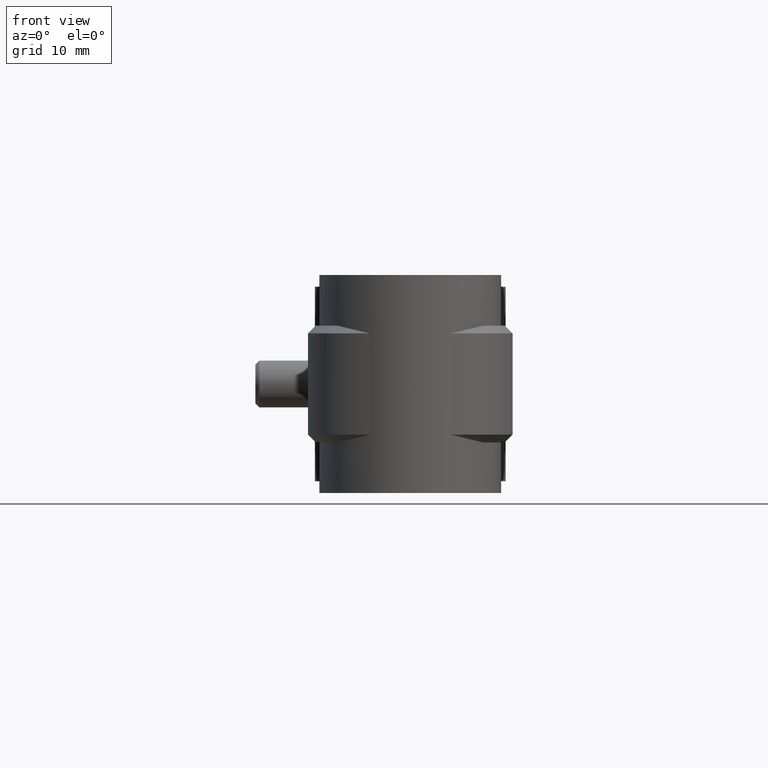
[diagram: clean part render]
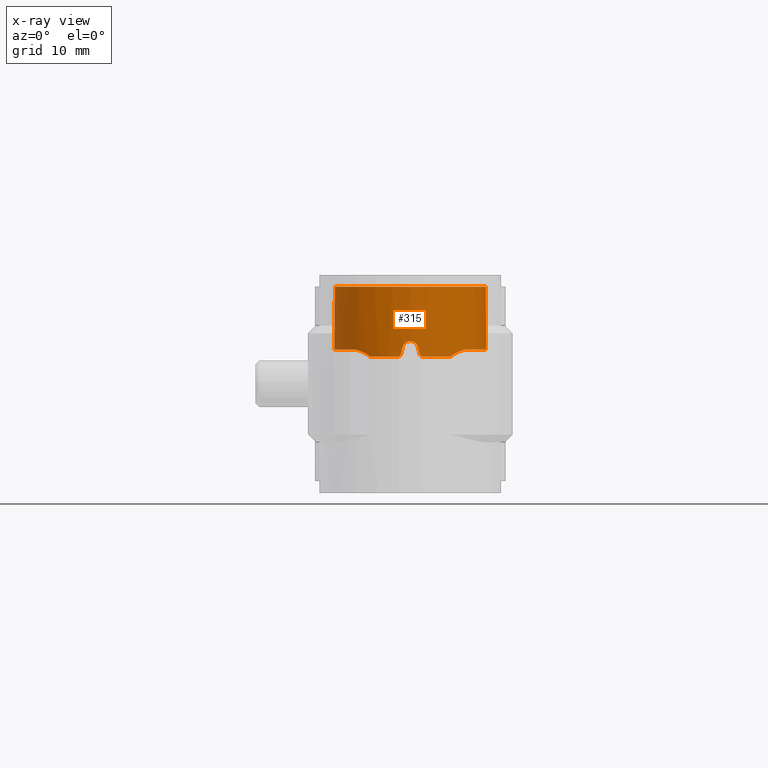
[diagram: x-ray — body ghosted, one internal face saturated and labeled with its STEP entity id]
A machine part, front view, then the same camera in x-ray: the body is ghosted and one INTERNAL B-rep face — a face not visible from any outside direction — is saturated and labeled: STEP entity #315.
In plain terms, the highlighted cylindrical surface (partial cylindrical patch) has radius 9.74 mm, axis along (0, 0, 1).
Its self-contained STEP definition (entity closure, byte-faithful):
#315 = ADVANCED_FACE( '', ( #526 ), #527, .T. );
#526 = FACE_OUTER_BOUND( '', #976, .T. );
#527 = CYLINDRICAL_SURFACE( '', #977, 9.74000000000000 );
#976 = EDGE_LOOP( '', ( #2002, #2003, #2004, #2005, #2006, #2007, #2008, #2009, #2010, #2011, #2012, #2013, #2014, #2015, #2016, #2017 ) );
#977 = AXIS2_PLACEMENT_3D( '', #2018, #2019, #2020 );
#2002 = ORIENTED_EDGE( '', *, *, #4694, .F. );
#2003 = ORIENTED_EDGE( '', *, *, #4695, .T. );
#2004 = ORIENTED_EDGE( '', *, *, #4696, .T. );
#2005 = ORIENTED_EDGE( '', *, *, #4697, .F. );
#2006 = ORIENTED_EDGE( '', *, *, #4698, .F. );
#2007 = ORIENTED_EDGE( '', *, *, #4699, .T. );
#2008 = ORIENTED_EDGE( '', *, *, #4700, .T. );
#2009 = ORIENTED_EDGE( '', *, *, #4701, .T. );
#2010 = ORIENTED_EDGE( '', *, *, #4702, .F. );
#2011 = ORIENTED_EDGE( '', *, *, #4703, .F. );
#2012 = ORIENTED_EDGE( '', *, *, #4704, .F. );
#2013 = ORIENTED_EDGE( '', *, *, #4705, .F. );
#2014 = ORIENTED_EDGE( '', *, *, #4706, .F. );
#2015 = ORIENTED_EDGE( '', *, *, #4707, .F. );
#2016 = ORIENTED_EDGE( '', *, *, #4708, .F. );
#2017 = ORIENTED_EDGE( '', *, *, #4709, .F. );
#2018 = CARTESIAN_POINT( '', ( 0.000000000000000, 0.000000000000000, 0.000000000000000 ) );
#2019 = DIRECTION( '', ( 0.000000000000000, 0.000000000000000, 1.00000000000000 ) );
#2020 = DIRECTION( '', ( 1.00000000000000, -6.12303176911189E-017, 0.000000000000000 ) );
#4694 = EDGE_CURVE( '', #5277, #5278, #5279, .T. );
#4695 = EDGE_CURVE( '', #5277, #5280, #5281, .T. );
#4696 = EDGE_CURVE( '', #5280, #5282, #5283, .T. );
#4697 = EDGE_CURVE( '', #5284, #5282, #5285, .T. );
#4698 = EDGE_CURVE( '', #5286, #5284, #5287, .F. );
#4699 = EDGE_CURVE( '', #5286, #5288, #5289, .T. );
#4700 = EDGE_CURVE( '', #5288, #5290, #5291, .T. );
#4701 = EDGE_CURVE( '', #5290, #5292, #5293, .T. );
#4702 = EDGE_CURVE( '', #5294, #5292, #5295, .T. );
#4703 = EDGE_CURVE( '', #5296, #5294, #5297, .T. );
#4704 = EDGE_CURVE( '', #5298, #5296, #5299, .T. );
#4705 = EDGE_CURVE( '', #5300, #5298, #5301, .T. );
#4706 = EDGE_CURVE( '', #5302, #5300, #5303, .T. );
#4707 = EDGE_CURVE( '', #5304, #5302, #5305, .T. );
#4708 = EDGE_CURVE( '', #5306, #5304, #5307, .T. );
#4709 = EDGE_CURVE( '', #5278, #5306, #5308, .T. );
#5277 = VERTEX_POINT( '', #6251 );
#5278 = VERTEX_POINT( '', #6252 );
#5279 = B_SPLINE_CURVE_WITH_KNOTS( '', 3, ( #6253, #6254, #6255, #6256 ), .UNSPECIFIED., .F., .F., ( 4, 4 ), ( 0.00511247518674574, 0.00528905155583519 ), .UNSPECIFIED. );
#5280 = VERTEX_POINT( '', #6257 );
#5281 = B_SPLINE_CURVE_WITH_KNOTS( '', 3, ( #6258, #6259, #6260, #6261, #6262, #6263, #6264, #6265 ), .UNSPECIFIED., .F., .F., ( 4, 2, 2, 4 ), ( 0.00165729756427079, 0.00290105319597624, 0.00352293101182897, 0.00414480882768169 ), .UNSPECIFIED. );
#5282 = VERTEX_POINT( '', #6266 );
#5283 = B_SPLINE_CURVE_WITH_KNOTS( '', 3, ( #6267, #6268, #6269, #6270, #6271, #6272, #6273, #6274, #6275, #6276, #6277, #6278, #6279, #6280, #6281, #6282, #6283, #6284, #6285, #6286, #6287, #6288, #6289, #6290, #6291, #6292 ), .UNSPECIFIED., .F., .F., ( 4, 2, 2, 2, 2, 2, 2, 2, 2, 2, 2, 2, 4 ), ( 0.000128665650344777, 0.00114666360792158, 0.00216466156549839, 0.00420065748065200, 0.00623665339580561, 0.00725465135338242, 0.00827264931095922, 0.00929064726853603, 0.0103086452261128, 0.0123446411412664, 0.0133626390988432, 0.0143806370564201, 0.0164166329715737 ), .UNSPECIFIED. );
#5284 = VERTEX_POINT( '', #6293 );
#5285 = LINE( '', #6294, #6295 );
#5286 = VERTEX_POINT( '', #6296 );
#5287 = CIRCLE( '', #6297, 9.74000000000000 );
#5288 = VERTEX_POINT( '', #6298 );
#5289 = LINE( '', #6299, #6300 );
#5290 = VERTEX_POINT( '', #6301 );
#5291 = B_SPLINE_CURVE_WITH_KNOTS( '', 3, ( #6302, #6303, #6304, #6305, #6306, #6307, #6308, #6309, #6310, #6311, #6312, #6313, #6314, #6315, #6316, #6317, #6318, #6319, #6320, #6321, #6322, #6323, #6324, #6325, #6326, #6327, #6328, #6329 ), .UNSPECIFIED., .F., .F., ( 4, 2, 2, 2, 2, 2, 2, 2, 2, 2, 2, 2, 2, 4 ), ( 0.000000000000000, 0.00203570962645634, 0.00305356443968451, 0.00407141925291268, 0.00610712887936901, 0.00712498369259718, 0.00814283850582534, 0.00916069331905351, 0.0101785481322817, 0.0122142577587380, 0.0132321125719662, 0.0142499673851943, 0.0152678221984225, 0.0162856770116507 ), .UNSPECIFIED. );
#5292 = VERTEX_POINT( '', #6330 );
#5293 = B_SPLINE_CURVE_WITH_KNOTS( '', 3, ( #6331, #6332, #6333, #6334, #6335, #6336, #6337, #6338 ), .UNSPECIFIED., .F., .F., ( 4, 2, 2, 4 ), ( 5.63355521490431E-005, 0.000684171958215715, 0.00131200836428239, 0.00256768117641573 ), .UNSPECIFIED. );
#5294 = VERTEX_POINT( '', #6339 );
#5295 = B_SPLINE_CURVE_WITH_KNOTS( '', 3, ( #6340, #6341, #6342, #6343 ), .UNSPECIFIED., .F., .F., ( 4, 4 ), ( 3.87895961444886E-018, 0.000176569787224768 ), .UNSPECIFIED. );
#5296 = VERTEX_POINT( '', #6344 );
#5297 = CIRCLE( '', #6345, 9.74000000000000 );
#5298 = VERTEX_POINT( '', #6346 );
#5299 = B_SPLINE_CURVE_WITH_KNOTS( '', 3, ( #6347, #6348, #6349, #6350, #6351, #6352 ), .UNSPECIFIED., .F., .F., ( 4, 2, 4 ), ( 1.78811203067275E-018, 0.000337975344790109, 0.000675950689580215 ), .UNSPECIFIED. );
#5300 = VERTEX_POINT( '', #6353 );
#5301 = ELLIPSE( '', #6354, 44.3711563805861, 9.74000000000000 );
#5302 = VERTEX_POINT( '', #6355 );
#5303 = B_SPLINE_CURVE_WITH_KNOTS( '', 3, ( #6356, #6357, #6358, #6359, #6360, #6361, #6362, #6363, #6364, #6365 ), .UNSPECIFIED., .F., .F., ( 4, 2, 2, 2, 4 ), ( 0.000000000000000, 0.000672051809726939, 0.00134410361945388, 0.00201615542918082, 0.00268820723890776 ), .UNSPECIFIED. );
#5304 = VERTEX_POINT( '', #6366 );
#5305 = ELLIPSE( '', #6367, 44.3711337458409, 9.74000000000000 );
#5306 = VERTEX_POINT( '', #6368 );
#5307 = B_SPLINE_CURVE_WITH_KNOTS( '', 3, ( #6369, #6370, #6371, #6372, #6373, #6374 ), .UNSPECIFIED., .F., .F., ( 4, 2, 4 ), ( 7.77003152234485E-018, 0.000337932954143210, 0.000675865908286413 ), .UNSPECIFIED. );
#5308 = CIRCLE( '', #6375, 9.74000000000000 );
#6251 = CARTESIAN_POINT( '', ( 5.15290067253365, -8.26530184925177, -9.00334139722808 ) );
#6252 = CARTESIAN_POINT( '', ( 5.00000000000000, -8.35868410696325, -9.00000000000000 ) );
#6253 = CARTESIAN_POINT( '', ( 5.15290067252648, -8.26530184924157, -9.00334139722776 ) );
#6254 = CARTESIAN_POINT( '', ( 5.10238839465895, -8.29679310695267, -9.00113261389081 ) );
#6255 = CARTESIAN_POINT( '', ( 5.05142599710824, -8.32792208961090, -8.99999999999997 ) );
#6256 = CARTESIAN_POINT( '', ( 5.00000000000000, -8.35868410696325, -8.99999999999997 ) );
#6257 = CARTESIAN_POINT( '', ( 6.95902164912058, -6.81466199124512, -8.11799656461129 ) );
#6258 = CARTESIAN_POINT( '', ( 5.15290067251874, -8.26530184924640, -9.00334139721350 ) );
#6259 = CARTESIAN_POINT( '', ( 5.44907426806424, -8.08065606770028, -8.76856680556296 ) );
#6260 = CARTESIAN_POINT( '', ( 5.75207947105307, -7.86971313882392, -8.57833081527870 ) );
#6261 = CARTESIAN_POINT( '', ( 6.20887158971729, -7.50701767445459, -8.35510613786717 ) );
#6262 = CARTESIAN_POINT( '', ( 6.36246690587964, -7.37752766765439, -8.29102575602881 ) );
#6263 = CARTESIAN_POINT( '', ( 6.66465683565369, -7.10571944833133, -8.18697797906827 ) );
#6264 = CARTESIAN_POINT( '', ( 6.81353976275909, -6.96322323417313, -8.14869550666412 ) );
#6265 = CARTESIAN_POINT( '', ( 6.95896523879892, -6.81471956907900, -8.11799635953710 ) );
#6266 = CARTESIAN_POINT( '', ( 6.01729818780882, 7.65896354077948, -8.12086241231917 ) );
#6267 = CARTESIAN_POINT( '', ( 6.95919067098811, -6.81448935759905, -8.11799709973607 ) );
#6268 = CARTESIAN_POINT( '', ( 7.19946211573696, -6.56911590273609, -8.11869935564062 ) );
#6269 = CARTESIAN_POINT( '', ( 7.42482155270500, -6.31308582106116, -8.11750239221287 ) );
#6270 = CARTESIAN_POINT( '', ( 7.84666105550342, -5.78039254321384, -8.11798463489033 ) );
#6271 = CARTESIAN_POINT( '', ( 8.04313917433545, -5.50372695296681, -8.11836586933797 ) );
#6272 = CARTESIAN_POINT( '', ( 8.58920928475247, -4.64274449705060, -8.11900401654248 ) );
#6273 = CARTESIAN_POINT( '', ( 8.89743619109403, -4.02070307979339, -8.11843008264165 ) );
#6274 = CARTESIAN_POINT( '', ( 9.36998587052904, -2.74477482073413, -8.11775880203325 ) );
#6275 = CARTESIAN_POINT( '', ( 9.53843195309941, -2.08698353733980, -8.11883913647496 ) );
#6276 = CARTESIAN_POINT( '', ( 9.68712070858722, -1.06990115408834, -8.11950834662493 ) );
#6277 = CARTESIAN_POINT( '', ( 9.71884039901968, -0.726524416825574, -8.11955266329700 ) );
#6278 = CARTESIAN_POINT( '', ( 9.74585126813842, -0.0456014164847925, -8.11923941266630 ) );
#6279 = CARTESIAN_POINT( '', ( 9.74147539217434, 0.293921268240240, -8.11888495175145 ) );
#6280 = CARTESIAN_POINT( '', ( 9.69740548047306, 0.971112493768455, -8.11821072912186 ) );
#6281 = CARTESIAN_POINT( '', ( 9.65771221961663, 1.30878108905131, -8.11792969634905 ) );
#6282 = CARTESIAN_POINT( '', ( 9.54227922223955, 1.98222614774554, -8.11809740901925 ) );
#6283 = CARTESIAN_POINT( '', ( 9.46597552632660, 2.31938436886296, -8.11841516356494 ) );
#6284 = CARTESIAN_POINT( '', ( 9.18742478873918, 3.30535502078382, -8.11906128548839 ) );
#6285 = CARTESIAN_POINT( '', ( 8.93555770435930, 3.93548479817662, -8.11883802413083 ) );
#6286 = CARTESIAN_POINT( '', ( 8.45911729182917, 4.84015419839392, -8.11805909968800 ) );
#6287 = CARTESIAN_POINT( '', ( 8.28252414688923, 5.13659995468792, -8.11778774980607 ) );
#6288 = CARTESIAN_POINT( '', ( 7.90133278100168, 5.70559423918065, -8.11805142712227 ) );
#6289 = CARTESIAN_POINT( '', ( 7.69720355035746, 5.97793831516412, -8.11870246683851 ) );
#6290 = CARTESIAN_POINT( '', ( 7.04533948353479, 6.75952273048301, -8.12065349690706 ) );
#6291 = CARTESIAN_POINT( '', ( 6.55856919469535, 7.23371160799397, -8.12159327370024 ) );
#6292 = CARTESIAN_POINT( '', ( 6.01729818780896, 7.65896354077958, -8.12086241231966 ) );
#6293 = CARTESIAN_POINT( '', ( 6.01729818780890, 7.65896354077964, 0.000000000000000 ) );
#6294 = CARTESIAN_POINT( '', ( 6.01729818780889, 7.65896354077964, 0.000000000000000 ) );
#6295 = VECTOR( '', #8953, 1000.00000000000 );
#6296 = CARTESIAN_POINT( '', ( -6.01729818780890, 7.65896354077964, 0.000000000000000 ) );
#6297 = AXIS2_PLACEMENT_3D( '', #8954, #8955, #8956 );
#6298 = CARTESIAN_POINT( '', ( -6.01729818780882, 7.65896354077948, -8.12086241231917 ) );
#6299 = CARTESIAN_POINT( '', ( -6.01729818780890, 7.65896354077964, 0.000000000000000 ) );
#6300 = VECTOR( '', #8957, 1000.00000000000 );
#6301 = CARTESIAN_POINT( '', ( -6.95902175458089, -6.81466197978690, -8.11799664381365 ) );
#6302 = CARTESIAN_POINT( '', ( -6.01729818780881, 7.65896354077948, -8.12086241231917 ) );
#6303 = CARTESIAN_POINT( '', ( -6.55856790360628, 7.23371262234354, -8.12159327195638 ) );
#6304 = CARTESIAN_POINT( '', ( -7.04559938824156, 6.75931693220312, -8.12065285765963 ) );
#6305 = CARTESIAN_POINT( '', ( -7.69800816164833, 5.97692055958461, -8.11869998916258 ) );
#6306 = CARTESIAN_POINT( '', ( -7.90234522029799, 5.70422200289576, -8.11804897837076 ) );
#6307 = CARTESIAN_POINT( '', ( -8.28396518059933, 5.13430906020513, -8.11778851272389 ) );
#6308 = CARTESIAN_POINT( '', ( -8.46008894743080, 4.83843562215688, -8.11806057312964 ) );
#6309 = CARTESIAN_POINT( '', ( -8.93597508713593, 3.93443850058371, -8.11883893756700 ) );
#6310 = CARTESIAN_POINT( '', ( -9.18788402010638, 3.30423407850028, -8.11906113461876 ) );
#6311 = CARTESIAN_POINT( '', ( -9.46654362572337, 2.31712012752649, -8.11841338666603 ) );
#6312 = CARTESIAN_POINT( '', ( -9.54272342281447, 1.98002498577867, -8.11809593807532 ) );
#6313 = CARTESIAN_POINT( '', ( -9.65790534491520, 1.30726187785697, -8.11793024589715 ) );
#6314 = CARTESIAN_POINT( '', ( -9.69753843015101, 0.969775008865527, -8.11821197108159 ) );
#6315 = CARTESIAN_POINT( '', ( -9.74151340987761, 0.292628872892920, -8.11888632849301 ) );
#6316 = CARTESIAN_POINT( '', ( -9.74585509605919, -0.0470304201823249, -8.11924067778936 ) );
#6317 = CARTESIAN_POINT( '', ( -9.71869901505161, -0.728555329841388, -8.11955298677538 ) );
#6318 = CARTESIAN_POINT( '', ( -9.68682337335513, -1.07245044347632, -8.11950732403661 ) );
#6319 = CARTESIAN_POINT( '', ( -9.53810213639688, -2.08820394521893, -8.11883701781424 ) );
#6320 = CARTESIAN_POINT( '', ( -9.36972104814378, -2.74577238211113, -8.11775842884232 ) );
#6321 = CARTESIAN_POINT( '', ( -9.01497370934746, -3.70319910933402, -8.11826349053475 ) );
#6322 = CARTESIAN_POINT( '', ( -8.87890290792454, -4.01877121997415, -8.11857003486608 ) );
#6323 = CARTESIAN_POINT( '', ( -8.57394864935323, -4.63387996446793, -8.11883484150411 ) );
#6324 = CARTESIAN_POINT( '', ( -8.40652505998381, -4.93084431672664, -8.11879077144499 ) );
#6325 = CARTESIAN_POINT( '', ( -8.04274996764083, -5.50427672069135, -8.11836517087792 ) );
#6326 = CARTESIAN_POINT( '', ( -7.84639585990168, -5.78074292730298, -8.11798423333141 ) );
#6327 = CARTESIAN_POINT( '', ( -7.42474394500355, -6.31316831178916, -8.11750240196253 ) );
#6328 = CARTESIAN_POINT( '', ( -7.19944831793022, -6.56912999353039, -8.11869931531293 ) );
#6329 = CARTESIAN_POINT( '', ( -6.95919067098807, -6.81448935759907, -8.11799709973606 ) );
#6330 = CARTESIAN_POINT( '', ( -5.15290067251414, -8.26530184925486, -9.00334139722722 ) );
#6331 = CARTESIAN_POINT( '', ( -6.95896530010645, -6.81471950647378, -8.11799634659515 ) );
#6332 = CARTESIAN_POINT( '', ( -6.81350688909388, -6.96325680634115, -8.14870245014604 ) );
#6333 = CARTESIAN_POINT( '', ( -6.66471327543450, -7.10565543609624, -8.18697551745480 ) );
#6334 = CARTESIAN_POINT( '', ( -6.36311288460083, -7.37695985065012, -8.29078640563771 ) );
#6335 = CARTESIAN_POINT( '', ( -6.20911076329466, -7.50684069542278, -8.35497046396447 ) );
#6336 = CARTESIAN_POINT( '', ( -5.75041296862249, -7.87101044844734, -8.57918286263685 ) );
#6337 = CARTESIAN_POINT( '', ( -5.44761061503819, -8.08156856415885, -8.76972703235671 ) );
#6338 = CARTESIAN_POINT( '', ( -5.15290067250838, -8.26530184925286, -9.00334139722171 ) );
#6339 = CARTESIAN_POINT( '', ( -5.00000000000005, -8.35868410696322, -9.00000000000000 ) );
#6340 = CARTESIAN_POINT( '', ( -5.00000000000005, -8.35868410696322, -8.99999999999997 ) );
#6341 = CARTESIAN_POINT( '', ( -5.05145605966114, -8.32790410678459, -8.99999999999997 ) );
#6342 = CARTESIAN_POINT( '', ( -5.10241745501398, -8.29677498963199, -9.00113388463213 ) );
#6343 = CARTESIAN_POINT( '', ( -5.15290067251135, -8.26530184925100, -9.00334139722709 ) );
#6344 = CARTESIAN_POINT( '', ( -1.65000000000003, -9.59922392696409, -9.00000000000000 ) );
#6345 = AXIS2_PLACEMENT_3D( '', #8958, #8959, #8960 );
#6346 = CARTESIAN_POINT( '', ( -1.16219512100914, -9.67041377091500, -8.60975609337373 ) );
#6347 = CARTESIAN_POINT( '', ( -1.16219512100915, -9.67041377091500, -8.60975609337372 ) );
#6348 = CARTESIAN_POINT( '', ( -1.18727375212526, -9.66739980859496, -8.72121668057950 ) );
#6349 = CARTESIAN_POINT( '', ( -1.24993415724792, -9.65988111351269, -8.82066197873394 ) );
#6350 = CARTESIAN_POINT( '', ( -1.42754791561315, -9.63523458319946, -8.96194356072408 ) );
#6351 = CARTESIAN_POINT( '', ( -1.53740204368782, -9.61857826532818, -8.99999999999994 ) );
#6352 = CARTESIAN_POINT( '', ( -1.65000000000003, -9.59922392696409, -8.99999999999994 ) );
#6353 = CARTESIAN_POINT( '', ( -0.975610000000024, -9.69101569124207, -7.78048800000004 ) );
#6354 = AXIS2_PLACEMENT_3D( '', #8961, #8962, #8963 );
#6355 = CARTESIAN_POINT( '', ( 0.975609757981814, -9.69101571560642, -7.78048781325256 ) );
#6356 = CARTESIAN_POINT( '', ( 0.975609757981816, -9.69101571560642, -7.78048781325256 ) );
#6357 = CARTESIAN_POINT( '', ( 0.925736317332277, -9.69603655313158, -7.55882816720831 ) );
#6358 = CARTESIAN_POINT( '', ( 0.801970009199494, -9.70855138127401, -7.36098304572832 ) );
#6359 = CARTESIAN_POINT( '', ( 0.447591118593249, -9.73133022813681, -7.07741626041991 ) );
#6360 = CARTESIAN_POINT( '', ( 0.227250466399519, -9.74000009858714, -6.99999905905285 ) );
#6361 = CARTESIAN_POINT( '', ( -0.227258917249933, -9.73999990141103, -7.00000093409708 ) );
#6362 = CARTESIAN_POINT( '', ( -0.447787378928190, -9.73131929998031, -7.07753890539982 ) );
#6363 = CARTESIAN_POINT( '', ( -0.801958240302645, -9.70855044976887, -7.36100772477569 ) );
#6364 = CARTESIAN_POINT( '', ( -0.925736493757280, -9.69603653662873, -7.55882786430924 ) );
#6365 = CARTESIAN_POINT( '', ( -0.975610000000024, -9.69101569124207, -7.78048800000004 ) );
#6366 = CARTESIAN_POINT( '', ( 1.16219499999999, -9.67041378545794, -8.60975599999999 ) );
#6367 = AXIS2_PLACEMENT_3D( '', #8964, #8965, #8966 );
#6368 = CARTESIAN_POINT( '', ( 1.64999999999995, -9.59922392696411, -9.00000000000000 ) );
#6369 = CARTESIAN_POINT( '', ( 1.64999999999995, -9.59922392696411, -8.99999999999995 ) );
#6370 = CARTESIAN_POINT( '', ( 1.53740181557159, -9.61857830453883, -9.00000000048322 ) );
#6371 = CARTESIAN_POINT( '', ( 1.42754074627650, -9.63523539541048, -8.96193065177298 ) );
#6372 = CARTESIAN_POINT( '', ( 1.24998026664616, -9.65987489775338, -8.82070593205110 ) );
#6373 = CARTESIAN_POINT( '', ( 1.18727373173841, -9.66739981136341, -8.72121703218233 ) );
#6374 = CARTESIAN_POINT( '', ( 1.16219499999999, -9.67041378545794, -8.60975599999999 ) );
#6375 = AXIS2_PLACEMENT_3D( '', #8967, #8968, #8969 );
#8953 = DIRECTION( '', ( 0.000000000000000, 0.000000000000000, -1.00000000000000 ) );
#8954 = CARTESIAN_POINT( '', ( 0.000000000000000, 0.000000000000000, 0.000000000000000 ) );
#8955 = DIRECTION( '', ( 0.000000000000000, 0.000000000000000, -1.00000000000000 ) );
#8956 = DIRECTION( '', ( -1.00000000000000, 0.000000000000000, 0.000000000000000 ) );
#8957 = DIRECTION( '', ( 0.000000000000000, 0.000000000000000, -1.00000000000000 ) );
#8958 = CARTESIAN_POINT( '', ( 0.000000000000000, 0.000000000000000, -9.00000000000000 ) );
#8959 = DIRECTION( '', ( 6.12303176911189E-017, -3.56070223424702E-017, -1.00000000000000 ) );
#8960 = DIRECTION( '', ( -1.00000000000000, 0.000000000000000, -6.12303176911189E-017 ) );
#8961 = CARTESIAN_POINT( '', ( 0.000000000000000, 0.000000000000000, -3.44443890776447 ) );
#8962 = DIRECTION( '', ( 0.975609806487711, -3.70563945908342E-017, -0.219511971165610 ) );
#8963 = DIRECTION( '', ( -0.219511971165610, 8.33767984580742E-018, -0.975609806487711 ) );
#8964 = CARTESIAN_POINT( '', ( 0.000000000000000, 0.000000000000000, -3.44444212055029 ) );
#8965 = DIRECTION( '', ( -0.975609781292647, 2.14240545250314E-017, -0.219512083143762 ) );
#8966 = DIRECTION( '', ( 0.219512083143762, -4.82040968464266E-018, -0.975609781292647 ) );
#8967 = CARTESIAN_POINT( '', ( 0.000000000000000, 0.000000000000000, -9.00000000000000 ) );
#8968 = DIRECTION( '', ( 6.12303176911189E-017, -3.56070223424702E-017, -1.00000000000000 ) );
#8969 = DIRECTION( '', ( -1.00000000000000, 0.000000000000000, -6.12303176911189E-017 ) );